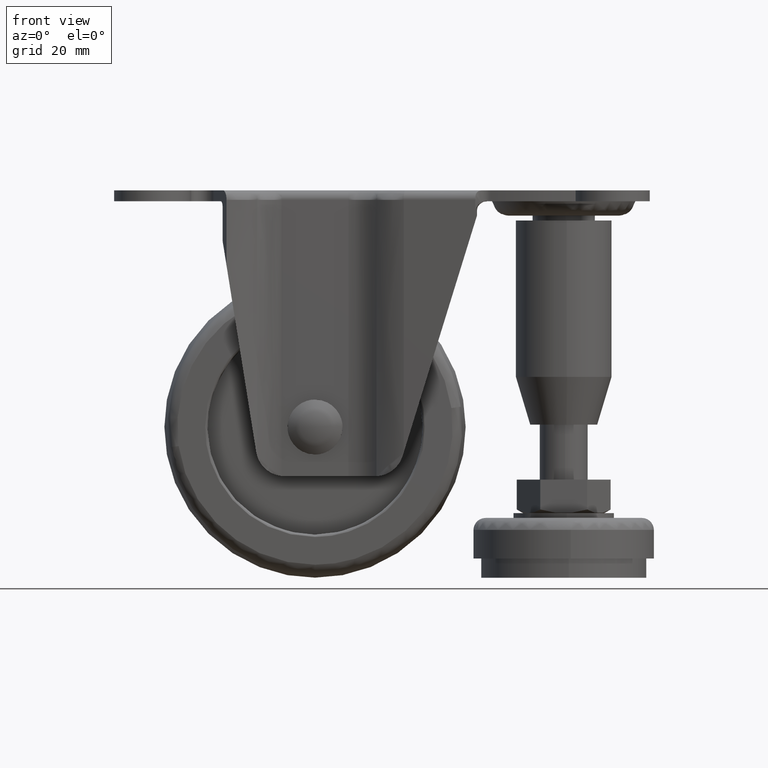
[diagram: clean part render]
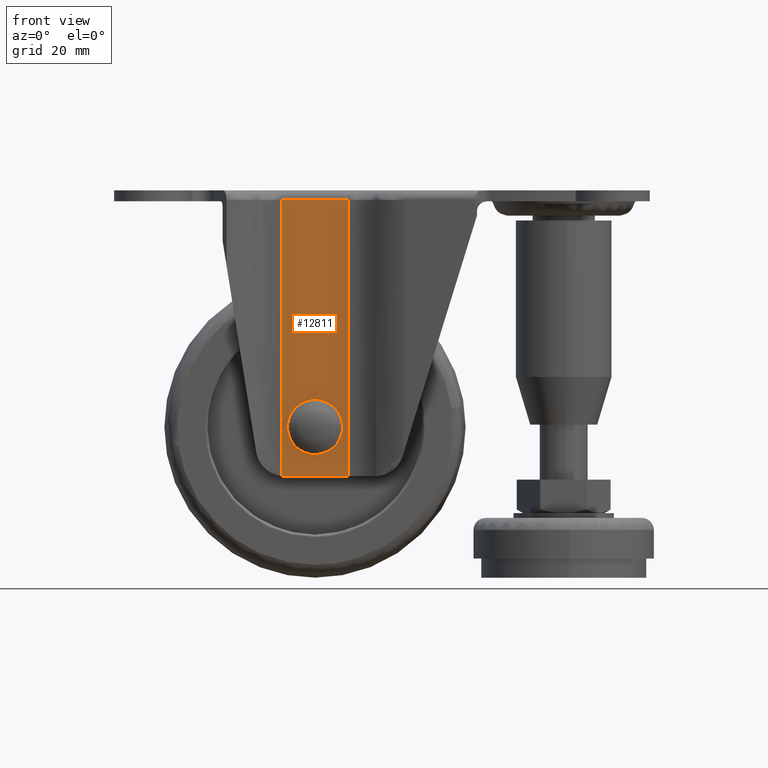
[diagram: same view with one face highlighted and labeled with its STEP entity id]
A machine part, front view. The second image highlights one B-rep face of the part: STEP entity #12811.
In plain terms, the highlighted face is a freeform B-spline surface patch.
Its self-contained STEP definition (entity closure, byte-faithful):
#7301=CARTESIAN_POINT('',(5.749781057614997,-17.750000000000000,0.050177579572559));
#7302=VERTEX_POINT('',#7301);
#7308=CARTESIAN_POINT('',(0.0,-17.750000000000000,5.750000000000000));
#7309=VERTEX_POINT('',#7308);
#7310=CARTESIAN_POINT('',(5.749781057614999,-17.750000000000000,0.050177579572559));
#7311=CARTESIAN_POINT('',(5.700039460468151,-17.749999999999996,5.750000000000000));
#7312=CARTESIAN_POINT('',(0.0,-17.750000000000000,5.750000000000000));
#7320=(BOUNDED_CURVE()B_SPLINE_CURVE(2,(#7310,#7311,#7312),.UNSPECIFIED.,.F.,.U.)B_SPLINE_CURVE_WITH_KNOTS((3,3),(0.251539894348984,0.500000000000000),.UNSPECIFIED.)CURVE()GEOMETRIC_REPRESENTATION_ITEM()RATIONAL_B_SPLINE_CURVE((0.996414028068012,0.708910879636574,1.0))REPRESENTATION_ITEM(''));
#7321=EDGE_CURVE('',#7302,#7309,#7320,.T.);
#7323=CARTESIAN_POINT('',(-5.749781057614997,-17.750000000000000,-0.050177579572557));
#7324=VERTEX_POINT('',#7323);
#7325=CARTESIAN_POINT('',(0.0,-17.750000000000000,5.750000000000000));
#7326=CARTESIAN_POINT('',(-5.750000000000000,-17.750000000000000,5.750000000000000));
#7327=CARTESIAN_POINT('',(-5.750000000000000,-17.750000000000000,0.0));
#7328=CARTESIAN_POINT('',(-5.750000000000000,-17.750000000000000,-0.025089267447500));
#7329=CARTESIAN_POINT('',(-5.749781057614999,-17.749999999999996,-0.050177579572555));
#7337=(BOUNDED_CURVE()B_SPLINE_CURVE(2,(#7325,#7326,#7327,#7328,#7329),.UNSPECIFIED.,.F.,.U.)B_SPLINE_CURVE_WITH_KNOTS((3,2,3),(0.500000000000000,0.750000000000000,0.751539894348984),.UNSPECIFIED.)CURVE()GEOMETRIC_REPRESENTATION_ITEM()RATIONAL_B_SPLINE_CURVE((1.0,0.707106781186548,1.0,0.998195901549973,0.996414028068012))REPRESENTATION_ITEM(''));
#7338=EDGE_CURVE('',#7309,#7324,#7337,.T.);
#7414=CARTESIAN_POINT('',(0.0,-17.750000000000000,-5.750000000000000));
#7415=VERTEX_POINT('',#7414);
#7416=CARTESIAN_POINT('',(-5.749781057614999,-17.749999999999996,-0.050177579572555));
#7417=CARTESIAN_POINT('',(-5.700039460468154,-17.749999999999996,-5.749999999999999));
#7418=CARTESIAN_POINT('',(0.0,-17.750000000000000,-5.750000000000000));
#7426=(BOUNDED_CURVE()B_SPLINE_CURVE(2,(#7416,#7417,#7418),.UNSPECIFIED.,.F.,.U.)B_SPLINE_CURVE_WITH_KNOTS((3,3),(0.751539894348984,1.0),.UNSPECIFIED.)CURVE()GEOMETRIC_REPRESENTATION_ITEM()RATIONAL_B_SPLINE_CURVE((0.996414028068012,0.708910879636574,1.0))REPRESENTATION_ITEM(''));
#7427=EDGE_CURVE('',#7324,#7415,#7426,.T.);
#7429=CARTESIAN_POINT('',(0.0,-17.750000000000000,-5.750000000000000));
#7430=CARTESIAN_POINT('',(5.750000000000000,-17.750000000000000,-5.750000000000000));
#7431=CARTESIAN_POINT('',(5.750000000000000,-17.750000000000000,0.0));
#7432=CARTESIAN_POINT('',(5.750000000000000,-17.750000000000004,0.025089267447501));
#7433=CARTESIAN_POINT('',(5.749781057614999,-17.750000000000000,0.050177579572559));
#7441=(BOUNDED_CURVE()B_SPLINE_CURVE(2,(#7429,#7430,#7431,#7432,#7433),.UNSPECIFIED.,.F.,.U.)B_SPLINE_CURVE_WITH_KNOTS((3,2,3),(0.0,0.250000000000000,0.251539894348984),.UNSPECIFIED.)CURVE()GEOMETRIC_REPRESENTATION_ITEM()RATIONAL_B_SPLINE_CURVE((1.0,0.707106781186548,1.0,0.998195901549973,0.996414028068012))REPRESENTATION_ITEM(''));
#7442=EDGE_CURVE('',#7415,#7302,#7441,.T.);
#11634=CARTESIAN_POINT('',(7.0,-17.750000000000000,47.500003999999997));
#11635=VERTEX_POINT('',#11634);
#11695=CARTESIAN_POINT('',(-7.0,-17.750000000000000,47.500003999999997));
#11696=VERTEX_POINT('',#11695);
#11710=CARTESIAN_POINT('',(7.0,-17.750000000000000,47.500003999999997));
#11711=CARTESIAN_POINT('',(-7.0,-17.750000000000000,47.500003999999997));
#11712=QUASI_UNIFORM_CURVE('',1,(#11710,#11711),.UNSPECIFIED.,.F.,.U.);
#11713=EDGE_CURVE('',#11635,#11696,#11712,.T.);
#12150=CARTESIAN_POINT('',(-6.377936999999890,-17.750000000000000,-10.299995999999901));
#12151=VERTEX_POINT('',#12150);
#12157=CARTESIAN_POINT('',(-7.0,-17.750000000000000,-10.267662011434521));
#12158=VERTEX_POINT('',#12157);
#12159=CARTESIAN_POINT('',(-7.000000000000001,-17.750000000000000,-10.267662011434529));
#12160=CARTESIAN_POINT('',(-6.689808838371263,-17.749999999999996,-10.299995999999997));
#12161=CARTESIAN_POINT('',(-6.377936999999890,-17.750000000000000,-10.299996000000000));
#12169=(BOUNDED_CURVE()B_SPLINE_CURVE(2,(#12159,#12160,#12161),.UNSPECIFIED.,.F.,.U.)CURVE()GEOMETRIC_REPRESENTATION_ITEM()QUASI_UNIFORM_CURVE()RATIONAL_B_SPLINE_CURVE((1.0,0.998651841711053,1.0))REPRESENTATION_ITEM(''));
#12170=EDGE_CURVE('',#12158,#12151,#12169,.T.);
#12738=CARTESIAN_POINT('',(7.0,-17.750000000000000,-10.299995999999860));
#12739=VERTEX_POINT('',#12738);
#12753=CARTESIAN_POINT('',(7.0,-17.750000000000000,-10.299995999999860));
#12754=CARTESIAN_POINT('',(-6.377936999999890,-17.750000000000000,-10.299995999999901));
#12755=QUASI_UNIFORM_CURVE('',1,(#12753,#12754),.UNSPECIFIED.,.F.,.U.);
#12756=EDGE_CURVE('',#12739,#12151,#12755,.T.);
#12779=CARTESIAN_POINT('',(7.0,-17.750000000000000,-10.299995999999860));
#12780=CARTESIAN_POINT('',(7.0,-17.750000000000000,47.500003999999997));
#12781=QUASI_UNIFORM_CURVE('',1,(#12779,#12780),.UNSPECIFIED.,.F.,.U.);
#12782=EDGE_CURVE('',#12739,#11635,#12781,.T.);
#12789=CARTESIAN_POINT('',(-7.699299972865284,-17.750000000000000,50.387113887972383));
#12790=CARTESIAN_POINT('',(-7.699299972865284,-17.750000000000000,-13.187107438289090));
#12791=CARTESIAN_POINT('',(7.699300348374545,-17.750000000000000,50.387113887972383));
#12792=CARTESIAN_POINT('',(7.699300348374545,-17.750000000000000,-13.187107438289090));
#12793=B_SPLINE_SURFACE_WITH_KNOTS('',1,1,((#12789,#12791),(#12790,#12792)),.UNSPECIFIED.,.F.,.F.,.U.,(2,2),(2,2),(0.0,63.574221326261480),(0.0,15.398600321239829),.UNSPECIFIED.);
#12794=ORIENTED_EDGE('',*,*,#12782,.T.);
#12795=ORIENTED_EDGE('',*,*,#11713,.T.);
#12796=CARTESIAN_POINT('',(-7.0,-17.750000000000000,-10.267662011434521));
#12797=CARTESIAN_POINT('',(-7.0,-17.750000000000000,47.500003999999997));
#12798=QUASI_UNIFORM_CURVE('',1,(#12796,#12797),.UNSPECIFIED.,.F.,.U.);
#12799=EDGE_CURVE('',#12158,#11696,#12798,.T.);
#12800=ORIENTED_EDGE('',*,*,#12799,.F.);
#12801=ORIENTED_EDGE('',*,*,#12170,.T.);
#12802=ORIENTED_EDGE('',*,*,#12756,.F.);
#12803=EDGE_LOOP('',(#12794,#12795,#12800,#12801,#12802));
#12804=FACE_OUTER_BOUND('',#12803,.T.);
#12805=ORIENTED_EDGE('',*,*,#7338,.F.);
#12806=ORIENTED_EDGE('',*,*,#7321,.F.);
#12807=ORIENTED_EDGE('',*,*,#7442,.F.);
#12808=ORIENTED_EDGE('',*,*,#7427,.F.);
#12809=EDGE_LOOP('',(#12805,#12806,#12807,#12808));
#12810=FACE_BOUND('',#12809,.T.);
#12811=ADVANCED_FACE('',(#12804,#12810),#12793,.T.);